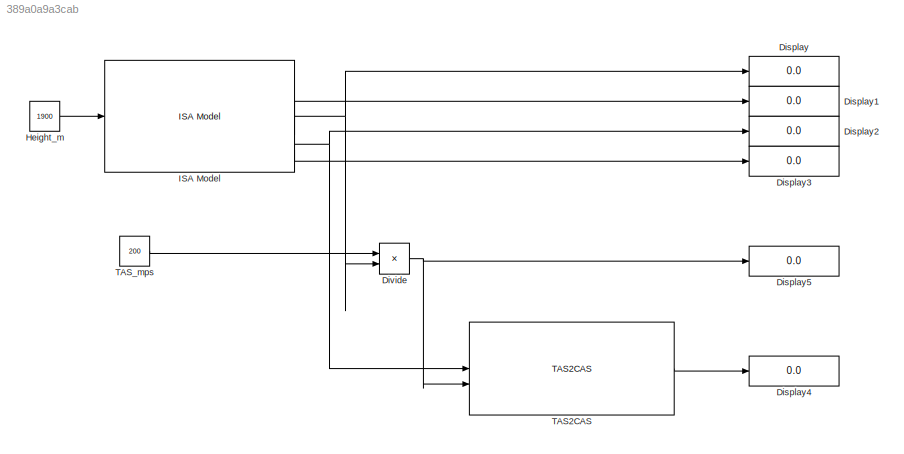
MODEL slx_389a0a9a3cab
KIND model
CONFIG AbsTol = auto
CONFIG EnableMultiTasking = off
CONFIG FixedStep = auto
CONFIG MaxStep = auto
CONFIG MinStep = auto
CONFIG RelTol = 1e-3
CONFIG SampleTimeConstraint = Unconstrained
CONFIG SolverName = VariableStepAuto
CONFIG StartTime = 0.0
CONFIG StopTime = 10.0
BLOCK [Display] Display
  Decimation = 1
BLOCK [Display] Display1
  Decimation = 1
BLOCK [Display] Display2
  Decimation = 1
BLOCK [Display] Display3
  Decimation = 1
BLOCK [Display] Display4
  Decimation = 1
BLOCK [Display] Display5
  Decimation = 1
BLOCK [Product] Divide
  Inputs = */
BLOCK [Constant] Height_m
  Value = 1900
BLOCK [Reference] ISA Model  REF=Atmospheric/ISA Model
  SourceBlock = Atmospheric/ISA Model
  SourceType = SubSystem
BLOCK [Reference] TAS2CAS  REF=Atmospheric/TAS2CAS
  SourceBlock = Atmospheric/TAS2CAS
  SourceType = SubSystem
BLOCK [Constant] TAS_mps
  Value = 200
NET Divide:1 -> Display5:1, TAS2CAS:2
LINE Height_m:1 -> ISA Model:1
NET ISA Model:1 -> Display:1, Divide:2
LINE ISA Model:2 -> Display1:1
NET ISA Model:3 -> Display2:1, TAS2CAS:1
LINE ISA Model:4 -> Display3:1
LINE TAS2CAS:1 -> Display4:1
LINE TAS_mps:1 -> Divide:1
note: NET lines group one-source signal fan-out (src -> all destinations, sorted); 1:1 wires keep LINE
